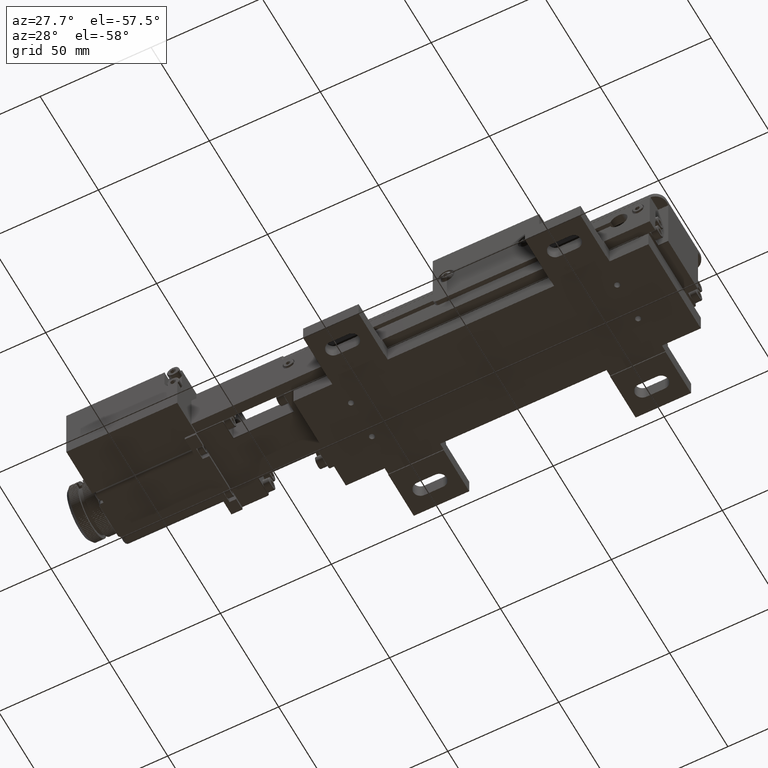
[diagram: clean part render]
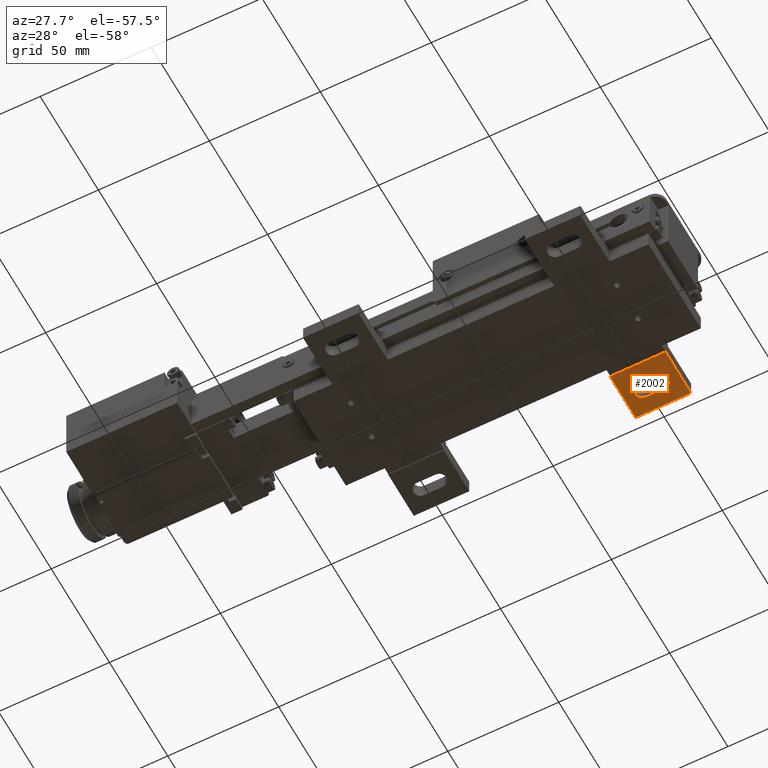
[diagram: same view with one face highlighted and labeled with its STEP entity id]
A machine part, auxiliary view. The second image highlights one B-rep face of the part: STEP entity #2002.
In plain terms, the highlighted planar face has unit normal (0, 0, -1).
Its self-contained STEP definition (entity closure, byte-faithful):
#30=FACE_BOUND('',#6692,.T.);
#540=PLANE('',#41187);
#2002=ADVANCED_FACE('',(#4339,#30),#540,.T.);
#4339=FACE_OUTER_BOUND('',#6691,.T.);
#6691=EDGE_LOOP('',(#9539,#9540,#9541,#9542));
#6692=EDGE_LOOP('',(#9543,#9544,#9545,#9546));
#9539=ORIENTED_EDGE('',*,*,#22783,.T.);
#9540=ORIENTED_EDGE('',*,*,#22772,.F.);
#9541=ORIENTED_EDGE('',*,*,#22791,.T.);
#9542=ORIENTED_EDGE('',*,*,#22785,.F.);
#9543=ORIENTED_EDGE('',*,*,#22712,.T.);
#9544=ORIENTED_EDGE('',*,*,#22706,.T.);
#9545=ORIENTED_EDGE('',*,*,#22702,.T.);
#9546=ORIENTED_EDGE('',*,*,#22711,.T.);
#22702=EDGE_CURVE('',#36114,#36115,#33756,.T.);
#22706=EDGE_CURVE('',#36118,#36114,#29409,.T.);
#22711=EDGE_CURVE('',#36115,#36121,#29414,.T.);
#22712=EDGE_CURVE('',#36121,#36118,#33758,.T.);
#22772=EDGE_CURVE('',#36155,#36156,#29457,.T.);
#22783=EDGE_CURVE('',#36160,#36156,#29468,.T.);
#22785=EDGE_CURVE('',#36160,#36161,#29470,.T.);
#22791=EDGE_CURVE('',#36155,#36161,#29476,.T.);
#29409=B_SPLINE_CURVE_WITH_KNOTS('',1,(#62299,#62300),.UNSPECIFIED.,.F.,
 .F.,(2,2),(-8.5,0.),.UNSPECIFIED.);
#29414=B_SPLINE_CURVE_WITH_KNOTS('',1,(#62309,#62310),.UNSPECIFIED.,.F.,
 .F.,(2,2),(-8.5,0.),.UNSPECIFIED.);
#29457=B_SPLINE_CURVE_WITH_KNOTS('',1,(#62485,#62486),.UNSPECIFIED.,.F.,
 .F.,(2,2),(0.,22.),.UNSPECIFIED.);
#29468=B_SPLINE_CURVE_WITH_KNOTS('',1,(#62507,#62508),.UNSPECIFIED.,.F.,
 .F.,(2,2),(-25.,0.),.UNSPECIFIED.);
#29470=B_SPLINE_CURVE_WITH_KNOTS('',1,(#62511,#62512),.UNSPECIFIED.,.F.,
 .F.,(2,2),(0.,22.),.UNSPECIFIED.);
#29476=B_SPLINE_CURVE_WITH_KNOTS('',1,(#62523,#62524),.UNSPECIFIED.,.F.,
 .F.,(2,2),(0.,25.),.UNSPECIFIED.);
#33756=(
BOUNDED_CURVE()
B_SPLINE_CURVE(2,(#62285,#62286,#62287,#62288,#62289),.UNSPECIFIED.,.F.,
 .F.)
B_SPLINE_CURVE_WITH_KNOTS((3,2,3),(-10.2101761241668,-5.10508806208341,
0.),.UNSPECIFIED.)
CURVE()
GEOMETRIC_REPRESENTATION_ITEM()
RATIONAL_B_SPLINE_CURVE((1.,0.707106781186548,1.,0.707106781186548,1.))
REPRESENTATION_ITEM('')
);
#33758=(
BOUNDED_CURVE()
B_SPLINE_CURVE(2,(#62311,#62312,#62313,#62314,#62315),.UNSPECIFIED.,.F.,
 .F.)
B_SPLINE_CURVE_WITH_KNOTS((3,2,3),(-10.2101761241668,-5.10508806208341,
0.),.UNSPECIFIED.)
CURVE()
GEOMETRIC_REPRESENTATION_ITEM()
RATIONAL_B_SPLINE_CURVE((1.,0.707106781186548,1.,0.707106781186548,1.))
REPRESENTATION_ITEM('')
);
#36114=VERTEX_POINT('',#57682);
#36115=VERTEX_POINT('',#57683);
#36118=VERTEX_POINT('',#57686);
#36121=VERTEX_POINT('',#57689);
#36155=VERTEX_POINT('',#57723);
#36156=VERTEX_POINT('',#57724);
#36160=VERTEX_POINT('',#57728);
#36161=VERTEX_POINT('',#57729);
#41187=AXIS2_PLACEMENT_3D('',#45536,#43253,$);
#43253=DIRECTION('',(0.,0.,-1.));
#45536=CARTESIAN_POINT('',(116.119999457495,23.1799991585131,0.00155960250481878));
#57682=CARTESIAN_POINT('',(96.7499994574945,40.7499991585131,0.00155960250485165));
#57683=CARTESIAN_POINT('',(96.7499994574945,34.2499991585131,0.0015596025048481));
#57686=CARTESIAN_POINT('',(105.249999457495,40.7499991585131,0.00155960250485165));
#57689=CARTESIAN_POINT('',(105.249999457495,34.2499991585131,0.0015596025048481));
#57723=CARTESIAN_POINT('',(88.4999994574945,47.4999991585131,0.00155960250485521));
#57724=CARTESIAN_POINT('',(88.4999994574945,25.4999991585131,0.00155960250484455));
#57728=CARTESIAN_POINT('',(113.499999457495,25.4999991585131,0.00155960250484455));
#57729=CARTESIAN_POINT('',(113.499999457495,47.4999991585131,0.00155960250485521));
#62285=CARTESIAN_POINT('',(96.7499994574945,40.7499991585131,0.00155960250485665));
#62286=CARTESIAN_POINT('',(93.4999994574945,40.7499991585131,0.00155960250485743));
#62287=CARTESIAN_POINT('',(93.4999994574945,37.4999991585131,0.00155960250485243));
#62288=CARTESIAN_POINT('',(93.4999994574945,34.2499991585131,0.00155960250484743));
#62289=CARTESIAN_POINT('',(96.7499994574945,34.2499991585131,0.00155960250484666));
#62299=CARTESIAN_POINT('',(105.249999457495,40.7499991585131,0.00155960250485165));
#62300=CARTESIAN_POINT('',(96.7499994574945,40.7499991585131,0.00155960250485165));
#62309=CARTESIAN_POINT('',(96.7499994574945,34.2499991585131,0.0015596025048481));
#62310=CARTESIAN_POINT('',(105.249999457495,34.2499991585131,0.0015596025048481));
#62311=CARTESIAN_POINT('',(105.249999457495,34.2499991585131,0.00155960250485376));
#62312=CARTESIAN_POINT('',(108.499999457495,34.2499991585131,0.00155960250485299));
#62313=CARTESIAN_POINT('',(108.499999457495,37.4999991585131,0.00155960250485088));
#62314=CARTESIAN_POINT('',(108.499999457495,40.7499991585131,0.00155960250484877));
#62315=CARTESIAN_POINT('',(105.249999457495,40.7499991585131,0.00155960250484954));
#62485=CARTESIAN_POINT('',(88.4999994574945,47.4999991585131,0.00155960250485521));
#62486=CARTESIAN_POINT('',(88.4999994574945,25.4999991585131,0.00155960250484455));
#62507=CARTESIAN_POINT('',(113.499999457495,25.4999991585131,0.00155960250484455));
#62508=CARTESIAN_POINT('',(88.4999994574945,25.4999991585131,0.00155960250484455));
#62511=CARTESIAN_POINT('',(113.499999457495,25.4999991585131,0.00155960250484455));
#62512=CARTESIAN_POINT('',(113.499999457495,47.4999991585131,0.00155960250485521));
#62523=CARTESIAN_POINT('',(88.4999994574945,47.4999991585131,0.00155960250485521));
#62524=CARTESIAN_POINT('',(113.499999457495,47.4999991585131,0.00155960250485521));